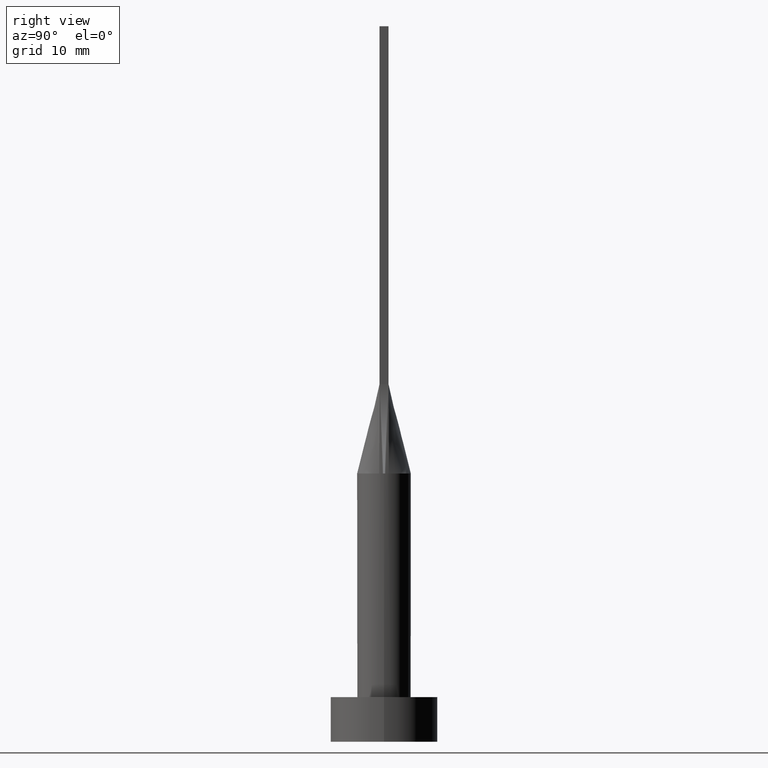
[diagram: clean part render]
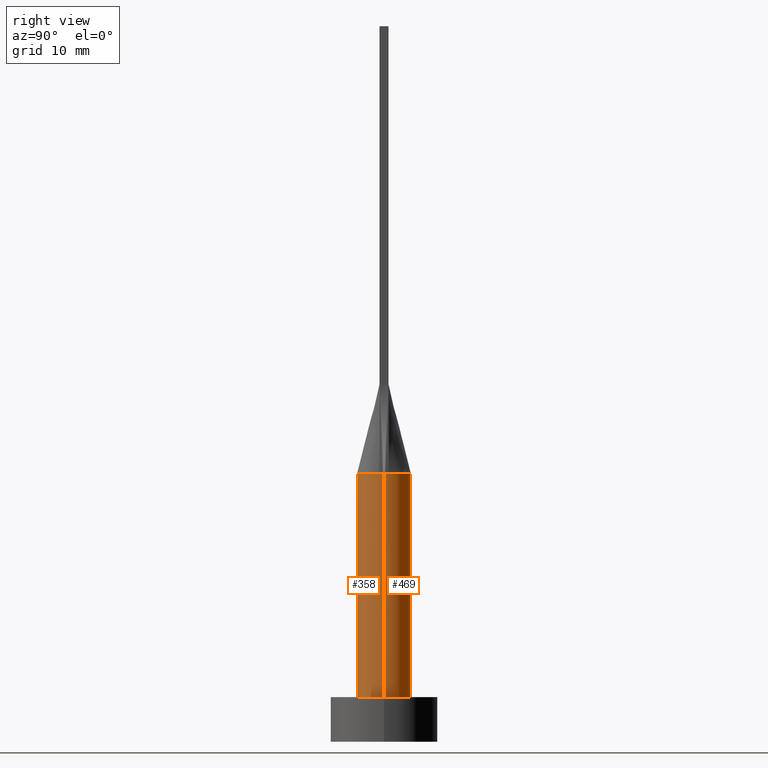
[diagram: same view with one multi-face feature highlighted, each face labeled with its STEP entity id]
A machine part, right view. The highlighted faces form ONE feature: a constant-radius fillet chain: 2 tangent blend faces with common blend radius 3 mm. The faces share edges in the B-rep.
Their STEP definitions:
[1] entity #469 (Cylinder):
#1 = ORIENTED_EDGE ( 'NONE', *, *, #352, .F. ) ;
#8 = B_SPLINE_CURVE_WITH_KNOTS ( 'NONE', 3,
 ( #234, #415, #73, #77, #217, #480, #266, #208, #390, #301, #80, #436, #434, #567, #303, #474, #431, #172 ),
 .UNSPECIFIED., .F., .F.,
 ( 4, 2, 2, 2, 2, 2, 2, 2, 4 ),
 ( 0.000000000000000000, 0.1250000000000000000, 0.2500000000000000000, 0.3750000000000000000, 0.5000000000000000000, 0.6250000000000000000, 0.7500000000000000000, 0.8750000000000000000, 1.000000000000000000 ),
 .UNSPECIFIED. ) ;
#10 = CARTESIAN_POINT ( 'NONE',  ( 0.000000000000000000, 0.000000000000000000, 30.00000000000000355 ) ) ;
#21 = ORIENTED_EDGE ( 'NONE', *, *, #253, .F. ) ;
#24 = DIRECTION ( 'NONE',  ( 0.000000000000000000, 0.000000000000000000, 1.000000000000000000 ) ) ;
#29 = VERTEX_POINT ( 'NONE', #376 ) ;
#66 = ORIENTED_EDGE ( 'NONE', *, *, #127, .T. ) ;
#67 = CARTESIAN_POINT ( 'NONE',  ( 3.000000000000000444, 3.673940397442060361E-16, 30.00000000000000355 ) ) ;
#70 = CIRCLE ( 'NONE', #148, 3.000000000000000444 ) ;
#73 = CARTESIAN_POINT ( 'NONE',  ( 2.829409566978765778, 1.041313647073049298, 30.00000000000001421 ) ) ;
#77 = CARTESIAN_POINT ( 'NONE',  ( 2.567367750129863957, 1.580669302822274913, 30.00000000000001066 ) ) ;
#80 = CARTESIAN_POINT ( 'NONE',  ( -0.8331239790496237640, 2.909606296598777231, 30.00000000000000000 ) ) ;
#81 = VERTEX_POINT ( 'NONE', #185 ) ;
#84 = VECTOR ( 'NONE', #387, 1000.000000000000000 ) ;
#89 = VERTEX_POINT ( 'NONE', #110 ) ;
#94 = VERTEX_POINT ( 'NONE', #198 ) ;
#104 = AXIS2_PLACEMENT_3D ( 'NONE', #204, #385, #247 ) ;
#105 = CYLINDRICAL_SURFACE ( 'NONE', #227, 3.000000000000000444 ) ;
#109 = DIRECTION ( 'NONE',  ( 0.000000000000000000, 0.000000000000000000, 1.000000000000000000 ) ) ;
#110 = CARTESIAN_POINT ( 'NONE',  ( -2.951881273711813858, 0.5367053345652121887, 30.00000000000000355 ) ) ;
#127 = EDGE_CURVE ( 'NONE', #516, #29, #237, .T. ) ;
#148 = AXIS2_PLACEMENT_3D ( 'NONE', #500, #109, #455 ) ;
#157 = DIRECTION ( 'NONE',  ( -1.000000000000000000, 0.000000000000000000, 0.000000000000000000 ) ) ;
#161 = FACE_OUTER_BOUND ( 'NONE', #304, .T. ) ;
#172 = CARTESIAN_POINT ( 'NONE',  ( -2.951881273711813858, 0.5367053345652121887, 30.00000000000000355 ) ) ;
#178 = CARTESIAN_POINT ( 'NONE',  ( 2.999804865149861666, 7.183978618307599791E-16, 30.00000000000000355 ) ) ;
#180 = ORIENTED_EDGE ( 'NONE', *, *, #188, .T. ) ;
#185 = CARTESIAN_POINT ( 'NONE',  ( -2.999804865149861666, -2.046477192139111704E-15, 30.00000000000000355 ) ) ;
#188 = EDGE_CURVE ( 'NONE', #29, #94, #361, .T. ) ;
#192 = DIRECTION ( 'NONE',  ( -0.000000000000000000, -0.000000000000000000, -1.000000000000000000 ) ) ;
#198 = CARTESIAN_POINT ( 'NONE',  ( -3.000000000000000444, 0.000000000000000000, 5.000000000000000000 ) ) ;
#204 = CARTESIAN_POINT ( 'NONE',  ( 0.000000000000000000, 0.000000000000000000, 5.000000000000000000 ) ) ;
#208 = CARTESIAN_POINT ( 'NONE',  ( 0.8331239790496237640, 2.909606296598776787, 30.00000000000000355 ) ) ;
#217 = CARTESIAN_POINT ( 'NONE',  ( 2.382399439808187580, 1.857547746650221709, 30.00000000000000711 ) ) ;
#227 = AXIS2_PLACEMENT_3D ( 'NONE', #10, #192, #157 ) ;
#234 = CARTESIAN_POINT ( 'NONE',  ( 2.951871110830718514, 0.5367036202482695639, 30.00000000000000355 ) ) ;
#237 = LINE ( 'NONE', #67, #404 ) ;
#247 = DIRECTION ( 'NONE',  ( 1.000000000000000000, 0.000000000000000000, 0.000000000000000000 ) ) ;
#248 = CARTESIAN_POINT ( 'NONE',  ( 0.000000000000000000, 0.000000000000000000, 30.00000000000000355 ) ) ;
#253 = EDGE_CURVE ( 'NONE', #89, #81, #70, .T. ) ;
#266 = CARTESIAN_POINT ( 'NONE',  ( 1.566158656300002061, 2.589797565249318811, 30.00000000000000000 ) ) ;
#292 = VERTEX_POINT ( 'NONE', #401 ) ;
#297 = ORIENTED_EDGE ( 'NONE', *, *, #392, .F. ) ;
#301 = CARTESIAN_POINT ( 'NONE',  ( -0.4172881767044976375, 2.999999999999999556, 29.99999999999999645 ) ) ;
#303 = CARTESIAN_POINT ( 'NONE',  ( -2.567367750129864401, 1.580669302822275357, 30.00000000000001421 ) ) ;
#304 = EDGE_LOOP ( 'NONE', ( #297, #66, #180, #574, #21, #1 ) ) ;
#352 = EDGE_CURVE ( 'NONE', #292, #89, #8, .T. ) ;
#361 = CIRCLE ( 'NONE', #104, 3.000000000000000444 ) ;
#370 = CARTESIAN_POINT ( 'NONE',  ( -3.000000000000000444, 0.000000000000000000, 30.00000000000000355 ) ) ;
#376 = CARTESIAN_POINT ( 'NONE',  ( 3.000000000000000444, 3.673940397442060361E-16, 5.000000000000000000 ) ) ;
#380 = EDGE_CURVE ( 'NONE', #81, #94, #563, .T. ) ;
#385 = DIRECTION ( 'NONE',  ( 0.000000000000000000, 0.000000000000000000, 1.000000000000000000 ) ) ;
#387 = DIRECTION ( 'NONE',  ( -0.000000000000000000, -0.000000000000000000, -1.000000000000000000 ) ) ;
#390 = CARTESIAN_POINT ( 'NONE',  ( 0.4172881767044975820, 3.000000000000000000, 30.00000000000000355 ) ) ;
#392 = EDGE_CURVE ( 'NONE', #516, #292, #423, .T. ) ;
#401 = CARTESIAN_POINT ( 'NONE',  ( 2.951871110830718514, 0.5367036202482695639, 30.00000000000000355 ) ) ;
#404 = VECTOR ( 'NONE', #465, 1000.000000000000000 ) ;
#415 = CARTESIAN_POINT ( 'NONE',  ( 2.907609730299723250, 0.7786563145999496616, 29.99999999999999645 ) ) ;
#423 = CIRCLE ( 'NONE', #572, 3.000000000000000444 ) ;
#431 = CARTESIAN_POINT ( 'NONE',  ( -2.907609730299723250, 0.7786563145999495505, 30.00000000000000355 ) ) ;
#434 = CARTESIAN_POINT ( 'NONE',  ( -1.882426928433513336, 2.362790634184935623, 30.00000000000000711 ) ) ;
#436 = CARTESIAN_POINT ( 'NONE',  ( -1.566158656300002061, 2.589797565249319700, 30.00000000000000000 ) ) ;
#455 = DIRECTION ( 'NONE',  ( 1.000000000000000000, 0.000000000000000000, 0.000000000000000000 ) ) ;
#465 = DIRECTION ( 'NONE',  ( -0.000000000000000000, -0.000000000000000000, -1.000000000000000000 ) ) ;
#469 = ADVANCED_FACE ( 'NONE', ( #161 ), #105, .T. ) ;
#474 = CARTESIAN_POINT ( 'NONE',  ( -2.829409566978765334, 1.041313647073049298, 30.00000000000001066 ) ) ;
#480 = CARTESIAN_POINT ( 'NONE',  ( 1.882426928433512892, 2.362790634184934291, 30.00000000000000355 ) ) ;
#500 = CARTESIAN_POINT ( 'NONE',  ( 0.000000000000000000, 0.000000000000000000, 30.00000000000000355 ) ) ;
#513 = DIRECTION ( 'NONE',  ( 1.000000000000000000, 0.000000000000000000, 0.000000000000000000 ) ) ;
#516 = VERTEX_POINT ( 'NONE', #178 ) ;
#563 = LINE ( 'NONE', #370, #84 ) ;
#567 = CARTESIAN_POINT ( 'NONE',  ( -2.382399439808186692, 1.857547746650221265, 30.00000000000001066 ) ) ;
#572 = AXIS2_PLACEMENT_3D ( 'NONE', #248, #24, #513 ) ;
#574 = ORIENTED_EDGE ( 'NONE', *, *, #380, .F. ) ;
[2] entity #358 (Cylinder):
#4 = DIRECTION ( 'NONE',  ( 0.000000000000000000, 0.000000000000000000, 1.000000000000000000 ) ) ;
#11 = DIRECTION ( 'NONE',  ( 1.000000000000000000, 0.000000000000000000, 0.000000000000000000 ) ) ;
#28 = EDGE_CURVE ( 'NONE', #94, #29, #428, .T. ) ;
#29 = VERTEX_POINT ( 'NONE', #376 ) ;
#30 = CIRCLE ( 'NONE', #363, 3.000000000000000444 ) ;
#38 = DIRECTION ( 'NONE',  ( -0.000000000000000000, -0.000000000000000000, -1.000000000000000000 ) ) ;
#59 = CARTESIAN_POINT ( 'NONE',  ( 0.000000000000000000, 0.000000000000000000, 30.00000000000000355 ) ) ;
#62 = AXIS2_PLACEMENT_3D ( 'NONE', #59, #298, #11 ) ;
#67 = CARTESIAN_POINT ( 'NONE',  ( 3.000000000000000444, 3.673940397442060361E-16, 30.00000000000000355 ) ) ;
#81 = VERTEX_POINT ( 'NONE', #185 ) ;
#84 = VECTOR ( 'NONE', #387, 1000.000000000000000 ) ;
#92 = AXIS2_PLACEMENT_3D ( 'NONE', #477, #38, #411 ) ;
#94 = VERTEX_POINT ( 'NONE', #198 ) ;
#97 = CARTESIAN_POINT ( 'NONE',  ( 0.000000000000000000, 0.000000000000000000, 30.00000000000000355 ) ) ;
#112 = EDGE_CURVE ( 'NONE', #334, #516, #506, .T. ) ;
#127 = EDGE_CURVE ( 'NONE', #516, #29, #237, .T. ) ;
#173 = EDGE_LOOP ( 'NONE', ( #259, #212, #475, #528, #467, #421 ) ) ;
#178 = CARTESIAN_POINT ( 'NONE',  ( 2.999804865149861666, 7.183978618307599791E-16, 30.00000000000000355 ) ) ;
#185 = CARTESIAN_POINT ( 'NONE',  ( -2.999804865149861666, -2.046477192139111704E-15, 30.00000000000000355 ) ) ;
#190 = CARTESIAN_POINT ( 'NONE',  ( 0.000000000000000000, 0.000000000000000000, 5.000000000000000000 ) ) ;
#198 = CARTESIAN_POINT ( 'NONE',  ( -3.000000000000000444, 0.000000000000000000, 5.000000000000000000 ) ) ;
#212 = ORIENTED_EDGE ( 'NONE', *, *, #112, .F. ) ;
#237 = LINE ( 'NONE', #67, #404 ) ;
#257 = AXIS2_PLACEMENT_3D ( 'NONE', #556, #318, #541 ) ;
#259 = ORIENTED_EDGE ( 'NONE', *, *, #127, .F. ) ;
#298 = DIRECTION ( 'NONE',  ( 0.000000000000000000, 0.000000000000000000, 1.000000000000000000 ) ) ;
#305 = CYLINDRICAL_SURFACE ( 'NONE', #92, 3.000000000000000444 ) ;
#318 = DIRECTION ( 'NONE',  ( 0.000000000000000000, 0.000000000000000000, 1.000000000000000000 ) ) ;
#334 = VERTEX_POINT ( 'NONE', #362 ) ;
#351 = AXIS2_PLACEMENT_3D ( 'NONE', #190, #418, #445 ) ;
#357 = DIRECTION ( 'NONE',  ( 1.000000000000000000, 0.000000000000000000, 0.000000000000000000 ) ) ;
#358 = ADVANCED_FACE ( 'NONE', ( #524 ), #305, .T. ) ;
#362 = CARTESIAN_POINT ( 'NONE',  ( 2.951896064709005785, -0.5367080392066734262, 30.00000000000000355 ) ) ;
#363 = AXIS2_PLACEMENT_3D ( 'NONE', #97, #4, #357 ) ;
#370 = CARTESIAN_POINT ( 'NONE',  ( -3.000000000000000444, 0.000000000000000000, 30.00000000000000355 ) ) ;
#376 = CARTESIAN_POINT ( 'NONE',  ( 3.000000000000000444, 3.673940397442060361E-16, 5.000000000000000000 ) ) ;
#380 = EDGE_CURVE ( 'NONE', #81, #94, #563, .T. ) ;
#387 = DIRECTION ( 'NONE',  ( -0.000000000000000000, -0.000000000000000000, -1.000000000000000000 ) ) ;
#404 = VECTOR ( 'NONE', #465, 1000.000000000000000 ) ;
#411 = DIRECTION ( 'NONE',  ( -1.000000000000000000, 0.000000000000000000, 0.000000000000000000 ) ) ;
#412 = EDGE_CURVE ( 'NONE', #485, #334, #473, .T. ) ;
#418 = DIRECTION ( 'NONE',  ( 0.000000000000000000, 0.000000000000000000, 1.000000000000000000 ) ) ;
#421 = ORIENTED_EDGE ( 'NONE', *, *, #28, .T. ) ;
#428 = CIRCLE ( 'NONE', #351, 3.000000000000000444 ) ;
#445 = DIRECTION ( 'NONE',  ( 1.000000000000000000, 0.000000000000000000, 0.000000000000000000 ) ) ;
#465 = DIRECTION ( 'NONE',  ( -0.000000000000000000, -0.000000000000000000, -1.000000000000000000 ) ) ;
#467 = ORIENTED_EDGE ( 'NONE', *, *, #380, .T. ) ;
#473 = CIRCLE ( 'NONE', #62, 3.000000000000000444 ) ;
#475 = ORIENTED_EDGE ( 'NONE', *, *, #412, .F. ) ;
#477 = CARTESIAN_POINT ( 'NONE',  ( 0.000000000000000000, 0.000000000000000000, 30.00000000000000355 ) ) ;
#485 = VERTEX_POINT ( 'NONE', #557 ) ;
#506 = CIRCLE ( 'NONE', #257, 3.000000000000000444 ) ;
#516 = VERTEX_POINT ( 'NONE', #178 ) ;
#524 = FACE_OUTER_BOUND ( 'NONE', #173, .T. ) ;
#528 = ORIENTED_EDGE ( 'NONE', *, *, #530, .F. ) ;
#530 = EDGE_CURVE ( 'NONE', #81, #485, #30, .T. ) ;
#541 = DIRECTION ( 'NONE',  ( 1.000000000000000000, 1.776356839400250465E-15, 0.000000000000000000 ) ) ;
#556 = CARTESIAN_POINT ( 'NONE',  ( 0.000000000000000000, 0.000000000000000000, 30.00000000000000355 ) ) ;
#557 = CARTESIAN_POINT ( 'NONE',  ( -2.951885853416577277, -0.5367063210726346068, 30.00000000000000355 ) ) ;
#563 = LINE ( 'NONE', #370, #84 ) ;